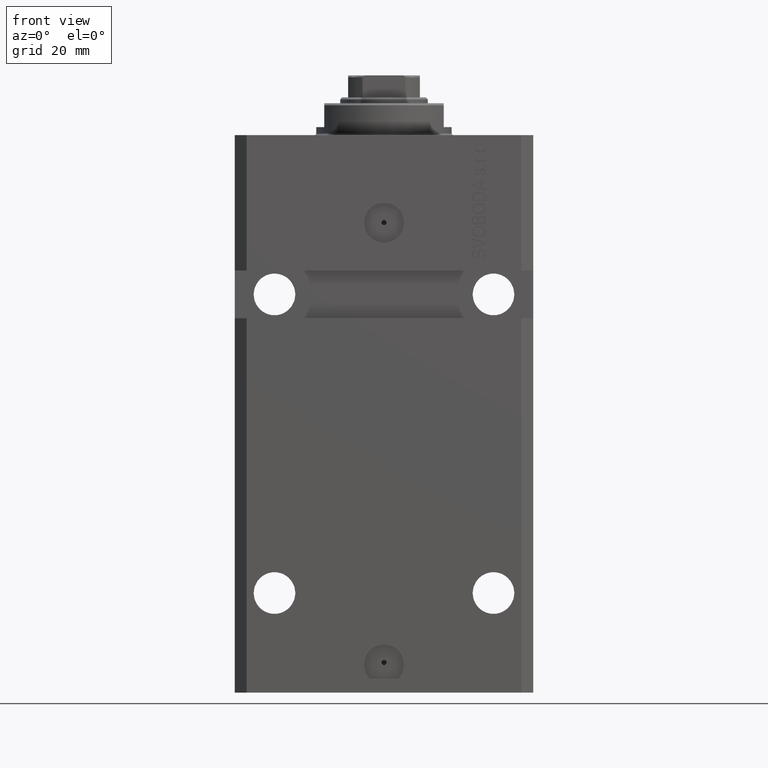
[diagram: clean part render]
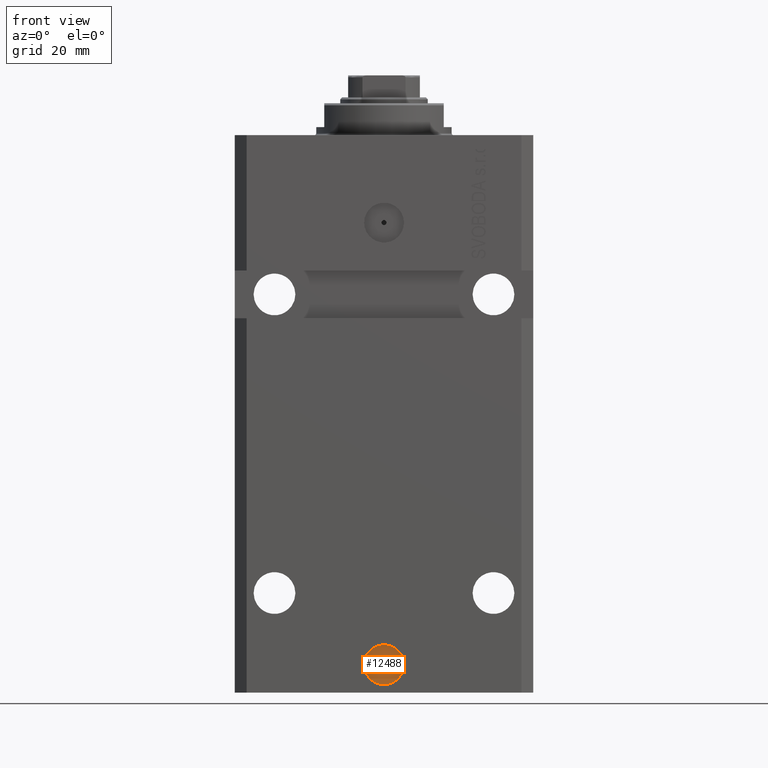
[diagram: same view with one face highlighted and labeled with its STEP entity id]
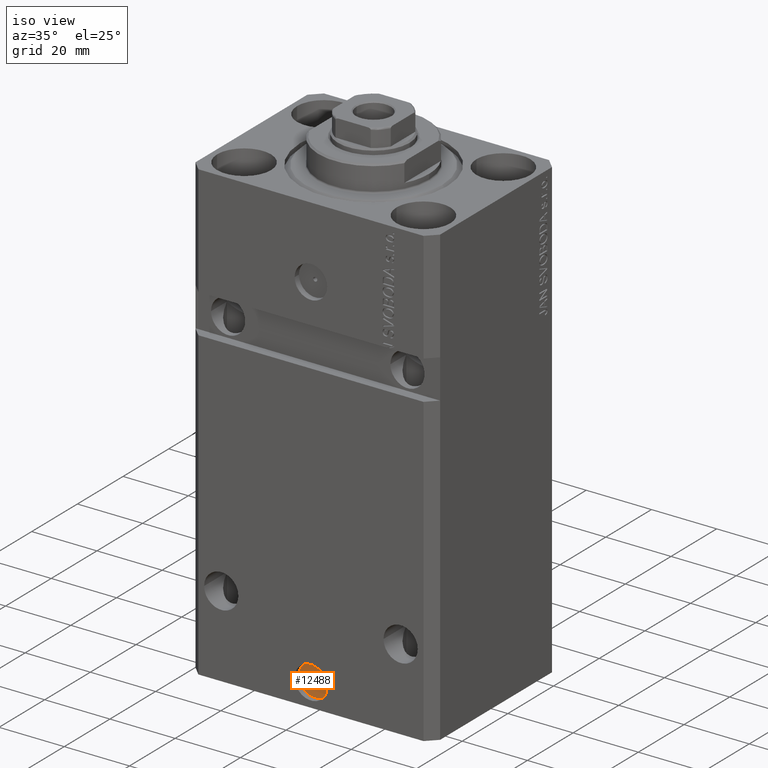
[diagram: same view with one face highlighted and labeled with its STEP entity id]
A machine part, front view. The second image highlights one B-rep face of the part: STEP entity #12488.
A second angle (iso view) of the same face is appended — the face is thin or edge-on in the first view.
In plain terms, the highlighted planar face has unit normal (0, -1, 0).
Its self-contained STEP definition (entity closure, byte-faithful):
#437 = CIRCLE ( 'NONE', #40176, 5.000000000000006217 ) ;
#631 = PLANE ( 'NONE',  #42194 ) ;
#2429 = CARTESIAN_POINT ( 'NONE',  ( -0.6250000000000006661, -25.59999999999999787, -132.4750000000000227 ) ) ;
#3187 = CIRCLE ( 'NONE', #9320, 5.000000000000006217 ) ;
#3634 = AXIS2_PLACEMENT_3D ( 'NONE', #44469, #37274, #8538 ) ;
#5090 = VERTEX_POINT ( 'NONE', #2429 ) ;
#5377 = EDGE_CURVE ( 'NONE', #6672, #5090, #26211, .T. ) ;
#6672 = VERTEX_POINT ( 'NONE', #42301 ) ;
#6795 = CARTESIAN_POINT ( 'NONE',  ( -2.234559053800897838E-16, -25.59999999999999787, -133.0000000000000000 ) ) ;
#8538 = DIRECTION ( 'NONE',  ( 1.000000000000000000, 0.000000000000000000, 0.000000000000000000 ) ) ;
#9320 = AXIS2_PLACEMENT_3D ( 'NONE', #6795, #20902, #17551 ) ;
#10391 = CARTESIAN_POINT ( 'NONE',  ( -5.000000000000006217, -25.59999999999999787, -133.0000000000000000 ) ) ;
#11052 = EDGE_LOOP ( 'NONE', ( #12376, #29446 ) ) ;
#12376 = ORIENTED_EDGE ( 'NONE', *, *, #34520, .T. ) ;
#12488 = ADVANCED_FACE ( 'NONE', ( #43972, #44206 ), #631, .T. ) ;
#13138 = EDGE_CURVE ( 'NONE', #38025, #38069, #437, .T. ) ;
#15215 = DIRECTION ( 'NONE',  ( 1.000000000000000000, 1.176083712526788232E-16, 0.000000000000000000 ) ) ;
#16213 = DIRECTION ( 'NONE',  ( 1.000000000000000000, 0.000000000000000000, 0.000000000000000000 ) ) ;
#17551 = DIRECTION ( 'NONE',  ( 1.000000000000000000, 0.000000000000000000, 0.000000000000000000 ) ) ;
#20902 = DIRECTION ( 'NONE',  ( 1.176083712526788232E-16, -1.000000000000000000, 0.000000000000000000 ) ) ;
#21391 = EDGE_CURVE ( 'NONE', #5090, #6672, #38039, .T. ) ;
#21664 = DIRECTION ( 'NONE',  ( 1.176083712526788232E-16, -1.000000000000000000, 0.000000000000000000 ) ) ;
#24551 = CARTESIAN_POINT ( 'NONE',  ( 3.010774304068577164E-15, -25.59999999999999787, -132.4750000000000227 ) ) ;
#24785 = DIRECTION ( 'NONE',  ( 1.000000000000000000, 0.000000000000000000, 0.000000000000000000 ) ) ;
#25510 = CARTESIAN_POINT ( 'NONE',  ( -2.234559053800897838E-16, -25.59999999999999787, -133.0000000000000000 ) ) ;
#25748 = DIRECTION ( 'NONE',  ( 1.176083712526788232E-16, -1.000000000000000000, 0.000000000000000000 ) ) ;
#26211 = CIRCLE ( 'NONE', #37701, 0.6250000000000036637 ) ;
#26883 = CARTESIAN_POINT ( 'NONE',  ( 5.000000000000006217, -25.59999999999999787, -133.0000000000000000 ) ) ;
#29446 = ORIENTED_EDGE ( 'NONE', *, *, #13138, .T. ) ;
#30849 = DIRECTION ( 'NONE',  ( 1.176083712526788232E-16, -1.000000000000000000, 0.000000000000000000 ) ) ;
#31289 = EDGE_LOOP ( 'NONE', ( #38851, #38268 ) ) ;
#34520 = EDGE_CURVE ( 'NONE', #38069, #38025, #3187, .T. ) ;
#37274 = DIRECTION ( 'NONE',  ( 1.176083712526788232E-16, -1.000000000000000000, 0.000000000000000000 ) ) ;
#37701 = AXIS2_PLACEMENT_3D ( 'NONE', #24551, #21664, #24785 ) ;
#37781 = CARTESIAN_POINT ( 'NONE',  ( -2.234559053800897838E-16, -25.59999999999999787, -133.0000000000000000 ) ) ;
#38025 = VERTEX_POINT ( 'NONE', #10391 ) ;
#38039 = CIRCLE ( 'NONE', #3634, 0.6250000000000036637 ) ;
#38069 = VERTEX_POINT ( 'NONE', #26883 ) ;
#38268 = ORIENTED_EDGE ( 'NONE', *, *, #21391, .F. ) ;
#38851 = ORIENTED_EDGE ( 'NONE', *, *, #5377, .F. ) ;
#40176 = AXIS2_PLACEMENT_3D ( 'NONE', #37781, #30849, #16213 ) ;
#42194 = AXIS2_PLACEMENT_3D ( 'NONE', #25510, #25748, #15215 ) ;
#42301 = CARTESIAN_POINT ( 'NONE',  ( 0.6250000000000067724, -25.59999999999999787, -132.4750000000000227 ) ) ;
#43972 = FACE_BOUND ( 'NONE', #31289, .T. ) ;
#44206 = FACE_OUTER_BOUND ( 'NONE', #11052, .T. ) ;
#44469 = CARTESIAN_POINT ( 'NONE',  ( 3.010774304068577164E-15, -25.59999999999999787, -132.4750000000000227 ) ) ;